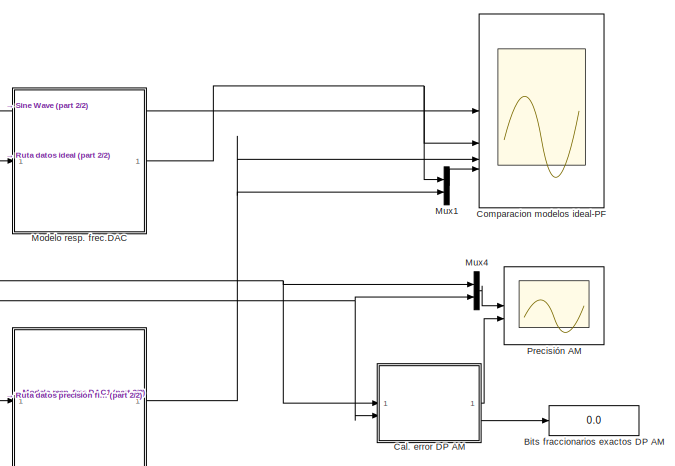
[diagram: root canvas - part 1/2, right side, full height]
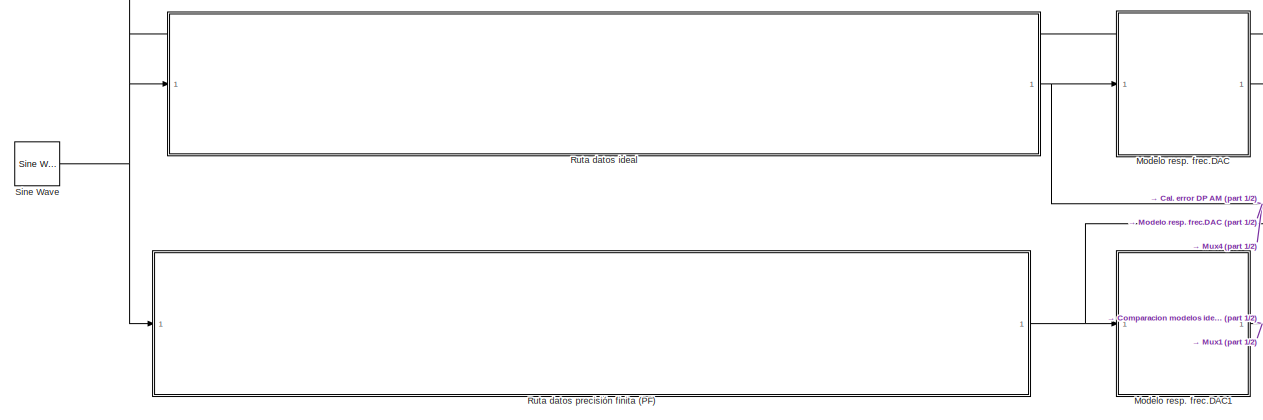
[diagram: root canvas - part 2/2, center side, full height]
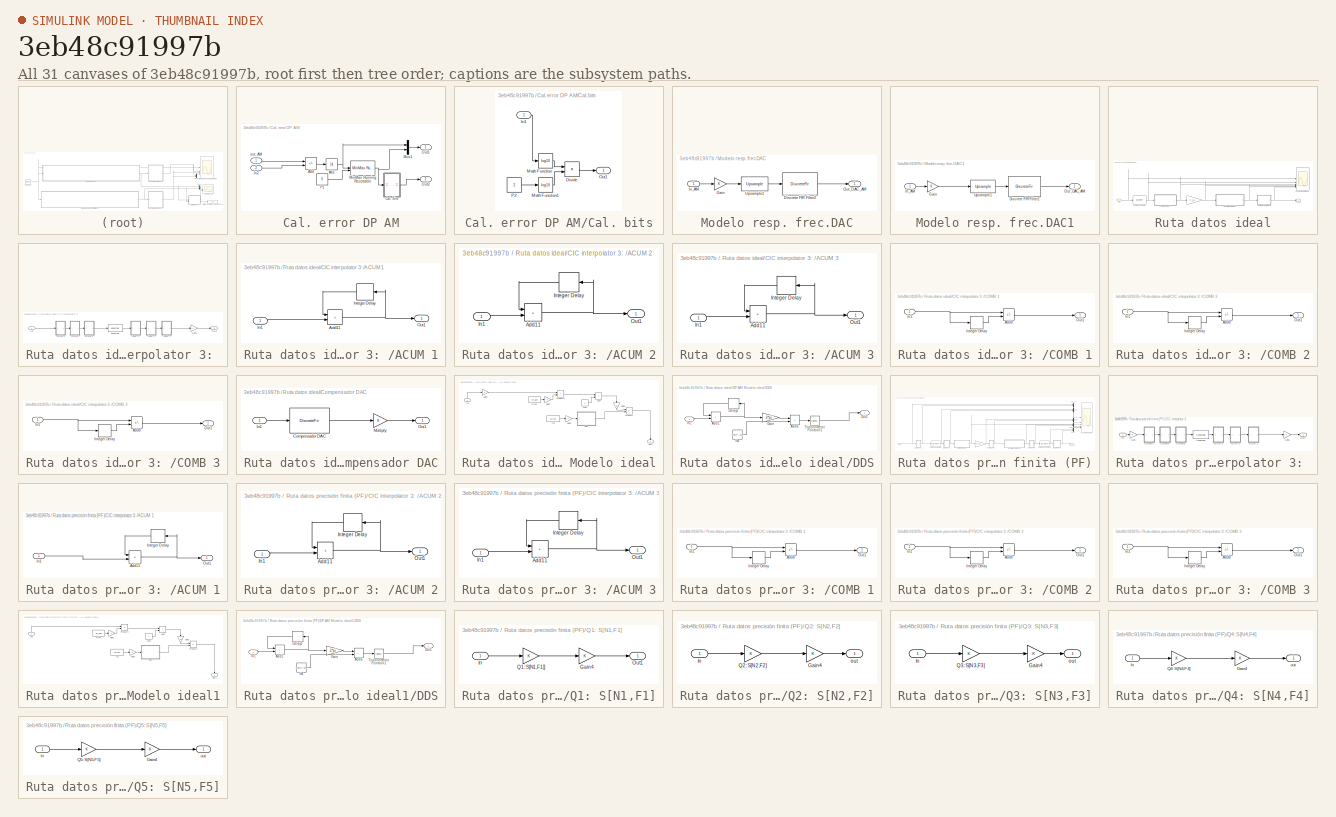
[diagram: thumbnail index - all 31 canvases of the model, root first then tree order]
MODEL slx_3eb48c91997b
KIND model
CONFIG AbsTol = auto
CONFIG EnableMultiTasking = on
CONFIG FixedStep = auto
CONFIG MaxStep = auto
CONFIG MinStep = auto
CONFIG RelTol = 1e-3
CONFIG SampleTimeConstraint = Unconstrained
CONFIG SolverName = VariableStepDiscrete
CONFIG StartTime = 0.0
CONFIG StopTime = sim_time
BLOCK [Display] Bits fraccionarios exactos DP AM
  Decimation = 1
BLOCK [SubSystem] Cal. error DP AM
BLOCK [Abs] Cal. error DP AM/Abs
  SaturateOnIntegerOverflow = off
BLOCK [Sum] Cal. error DP AM/Add
  IconShape = rectangular
  Inputs = +-
BLOCK [SubSystem] Cal. error DP AM/Cal. bits
BLOCK [Product] Cal. error DP AM/Cal. bits/Divide
  Inputs = */
BLOCK [Inport] Cal. error DP AM/Cal. bits/In1
BLOCK [Math] Cal. error DP AM/Cal. bits/Math Function
  Operator = log10
  SignedPower = on
BLOCK [Math] Cal. error DP AM/Cal. bits/Math Function1
  Operator = log10
  SignedPower = on
BLOCK [Outport] Cal. error DP AM/Cal. bits/Out1
  VectorParamsAs1DForOutWhenUnconnected = off
BLOCK [Constant] Cal. error DP AM/Cal. bits/P2
  OutDataTypeStr = double
  SampleTime = -1
  Value = 2
BLOCK [Inport] Cal. error DP AM/In2
  Port = 2
BLOCK [Reference] Cal. error DP AM/MinMax Running Resettable  REF=simulink/Math
Operations/MinMax
Running
Resettable
  SourceBlock = simulink/Math\nOperations/MinMax\nRunning\nResettable
  SourceType = MinMax Running Resettable
BLOCK [Mux] Cal. error DP AM/Mux1
  DisplayOption = bar
  Inputs = 2
BLOCK [Outport] Cal. error DP AM/Out1
  VectorParamsAs1DForOutWhenUnconnected = off
BLOCK [Outport] Cal. error DP AM/Out2
  Port = 2
  VectorParamsAs1DForOutWhenUnconnected = off
BLOCK [Constant] Cal. error DP AM/P1
  OutDataTypeStr = double
  SampleTime = -1
  Value = 0
BLOCK [Inport] Cal. error DP AM/out_AM
BLOCK [Scope] Comparacion modelos ideal-PF
  Floating = off
  NumInputPorts = 4
  ScopeSpecificationString = Simulink.scopes.TimeScopeBlockCfg('CurrentConfiguration', extmgr.ConfigurationSet(extmgr.Configuration('Core','General UI',true),extmgr.Configuration('Core','Source UI',true),extmgr.Configuration('Sources','WiredSimulink',true,'DataLoggingVariableName','ScopeData2','DataLoggingSaveFormat','Array','DataLoggingDecimation','1','DataLoggingDecimateData',true),extmgr.Configuration('Visuals','Time Domai...<+3724ch>
BLOCK [SubSystem] Modelo resp. frec.DAC
BLOCK [DiscreteFir] Modelo resp. frec.DAC/Discrete FIR Filter2
  Coefficients = [1 1 1 1]
  InputPortMap = u0
  InputProcessing = Columns as channels (frame based)
  OutputPortMap = o0
BLOCK [Gain] Modelo resp. frec.DAC/Gain
  OutDataTypeStr = double
BLOCK [Inport] Modelo resp. frec.DAC/In_AM
BLOCK [Outport] Modelo resp. frec.DAC/Out_DAC_AM
  VectorParamsAs1DForOutWhenUnconnected = off
BLOCK [Reference] Modelo resp. frec.DAC/Upsample1  REF=dspsigops/Upsample
  SourceBlock = dspsigops/Upsample
  SourceType = Upsample
  UserDataPersistent = on
BLOCK [SubSystem] Modelo resp. frec.DAC1
BLOCK [DiscreteFir] Modelo resp. frec.DAC1/Discrete FIR Filter2
  Coefficients = [1 1 1 1]
  InputPortMap = u0
  InputProcessing = Columns as channels (frame based)
  OutputPortMap = o0
BLOCK [Gain] Modelo resp. frec.DAC1/Gain
  OutDataTypeStr = double
BLOCK [Inport] Modelo resp. frec.DAC1/In_AM
BLOCK [Outport] Modelo resp. frec.DAC1/Out_DAC_AM
  VectorParamsAs1DForOutWhenUnconnected = off
BLOCK [Reference] Modelo resp. frec.DAC1/Upsample1  REF=dspsigops/Upsample
  SourceBlock = dspsigops/Upsample
  SourceType = Upsample
  UserDataPersistent = on
BLOCK [Mux] Mux1
  DisplayOption = bar
  Inputs = 2
BLOCK [Mux] Mux4
  DisplayOption = bar
  Inputs = 2
BLOCK [Scope] Precisión AM
  Floating = off
  NumInputPorts = 2
  ScopeSpecificationString = Simulink.scopes.TimeScopeBlockCfg('CurrentConfiguration', extmgr.ConfigurationSet(extmgr.Configuration('Core','General UI',true),extmgr.Configuration('Core','Source UI',true),extmgr.Configuration('Sources','WiredSimulink',true,'DataLoggingVariableName','ScopeData1'),extmgr.Configuration('Visuals','Time Domain',true,'SerializedDisplays',{struct('MinYLimReal','-1.04922','MaxYLimReal','1.04923','YLab...<+2123ch>
BLOCK [SubSystem] Ruta datos ideal
BLOCK [Gain] Ruta datos ideal/ 
  Gain = 2^-f_cic_scale
  OutDataTypeStr = double
BLOCK [SubSystem] Ruta datos ideal/CIC interpolator 3: 
BLOCK [SubSystem] Ruta datos ideal/CIC interpolator 3: /ACUM 1
BLOCK [Delay] Ruta datos ideal/CIC interpolator 3: /ACUM 1/   Integer Delay 
  DelayLength = 1
  InputPortMap = u0
  UserDataPersistent = on
BLOCK [Sum] Ruta datos ideal/CIC interpolator 3: /ACUM 1/Add11
  IconShape = rectangular
BLOCK [Inport] Ruta datos ideal/CIC interpolator 3: /ACUM 1/In1
BLOCK [Outport] Ruta datos ideal/CIC interpolator 3: /ACUM 1/Out1
  VectorParamsAs1DForOutWhenUnconnected = off
BLOCK [SubSystem] Ruta datos ideal/CIC interpolator 3: /ACUM 2
BLOCK [Delay] Ruta datos ideal/CIC interpolator 3: /ACUM 2/   Integer Delay 
  DelayLength = 1
  InputPortMap = u0
  UserDataPersistent = on
BLOCK [Sum] Ruta datos ideal/CIC interpolator 3: /ACUM 2/Add11
  IconShape = rectangular
BLOCK [Inport] Ruta datos ideal/CIC interpolator 3: /ACUM 2/In1
BLOCK [Outport] Ruta datos ideal/CIC interpolator 3: /ACUM 2/Out1
  VectorParamsAs1DForOutWhenUnconnected = off
BLOCK [SubSystem] Ruta datos ideal/CIC interpolator 3: /ACUM 3
BLOCK [Delay] Ruta datos ideal/CIC interpolator 3: /ACUM 3/   Integer Delay 
  DelayLength = 1
  InputPortMap = u0
  UserDataPersistent = on
BLOCK [Sum] Ruta datos ideal/CIC interpolator 3: /ACUM 3/Add11
  IconShape = rectangular
BLOCK [Inport] Ruta datos ideal/CIC interpolator 3: /ACUM 3/In1
BLOCK [Outport] Ruta datos ideal/CIC interpolator 3: /ACUM 3/Out1
  VectorParamsAs1DForOutWhenUnconnected = off
BLOCK [SubSystem] Ruta datos ideal/CIC interpolator 3: /COMB 1
BLOCK [Sum] Ruta datos ideal/CIC interpolator 3: /COMB 1/Add8
  IconShape = rectangular
  Inputs = +-
BLOCK [Inport] Ruta datos ideal/CIC interpolator 3: /COMB 1/In1
BLOCK [Delay] Ruta datos ideal/CIC interpolator 3: /COMB 1/Integer Delay 
  DelayLength = 1
  InputPortMap = u0
  UserDataPersistent = on
BLOCK [Outport] Ruta datos ideal/CIC interpolator 3: /COMB 1/Out1
  VectorParamsAs1DForOutWhenUnconnected = off
BLOCK [SubSystem] Ruta datos ideal/CIC interpolator 3: /COMB 2
BLOCK [Sum] Ruta datos ideal/CIC interpolator 3: /COMB 2/Add8
  IconShape = rectangular
  Inputs = +-
BLOCK [Inport] Ruta datos ideal/CIC interpolator 3: /COMB 2/In1
BLOCK [Delay] Ruta datos ideal/CIC interpolator 3: /COMB 2/Integer Delay 
  DelayLength = 1
  InputPortMap = u0
  UserDataPersistent = on
BLOCK [Outport] Ruta datos ideal/CIC interpolator 3: /COMB 2/Out1
  VectorParamsAs1DForOutWhenUnconnected = off
BLOCK [SubSystem] Ruta datos ideal/CIC interpolator 3: /COMB 3
BLOCK [Sum] Ruta datos ideal/CIC interpolator 3: /COMB 3/Add8
  IconShape = rectangular
  Inputs = +-
BLOCK [Inport] Ruta datos ideal/CIC interpolator 3: /COMB 3/In1
BLOCK [Delay] Ruta datos ideal/CIC interpolator 3: /COMB 3/Integer Delay 
  DelayLength = 1
  InputPortMap = u0
  UserDataPersistent = on
BLOCK [Outport] Ruta datos ideal/CIC interpolator 3: /COMB 3/Out1
  VectorParamsAs1DForOutWhenUnconnected = off
BLOCK [Gain] Ruta datos ideal/CIC interpolator 3: /Gain1
  OutDataTypeStr = double
BLOCK [Inport] Ruta datos ideal/CIC interpolator 3: /In1
BLOCK [Outport] Ruta datos ideal/CIC interpolator 3: /Out1
  VectorParamsAs1DForOutWhenUnconnected = off
BLOCK [Reference] Ruta datos ideal/CIC interpolator 3: /Upsample  REF=dspsigops/Upsample
  SourceBlock = dspsigops/Upsample
  SourceType = Upsample
  UserDataPersistent = on
BLOCK [DiscreteFir] Ruta datos ideal/Compensador CIC
  Coefficients = h_comp_cic
  InputPortMap = u0
  InputProcessing = Columns as channels (frame based)
  OutputPortMap = o0
BLOCK [SubSystem] Ruta datos ideal/Compensador DAC
BLOCK [DiscreteFir] Ruta datos ideal/Compensador DAC/Compensador DAC
  Coefficients = h_comp_DAC
  InputPortMap = u0
  InputProcessing = Columns as channels (frame based)
  OutputPortMap = o0
BLOCK [Inport] Ruta datos ideal/Compensador DAC/In1
BLOCK [Gain] Ruta datos ideal/Compensador DAC/Multiply
  OutDataTypeStr = double
BLOCK [Outport] Ruta datos ideal/Compensador DAC/Out1
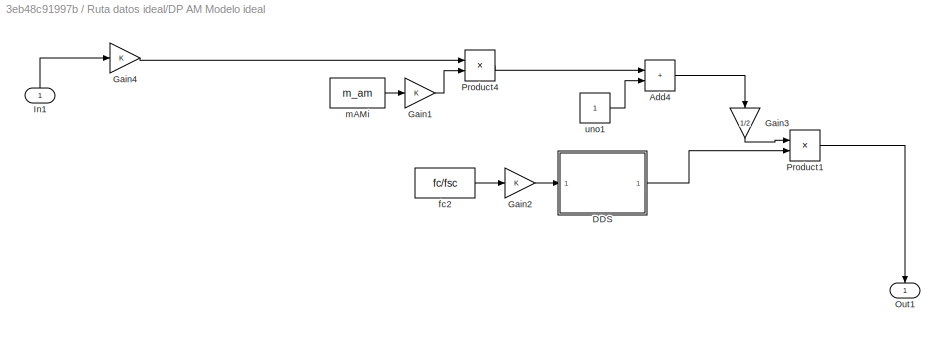
BLOCK [SubSystem] Ruta datos ideal/DP AM Modelo ideal
BLOCK [Sum] Ruta datos ideal/DP AM Modelo ideal/Add4
  IconShape = rectangular
BLOCK [SubSystem] Ruta datos ideal/DP AM Modelo ideal/DDS
BLOCK [Sum] Ruta datos ideal/DP AM Modelo ideal/DDS/Add1
  IconShape = rectangular
BLOCK [Sum] Ruta datos ideal/DP AM Modelo ideal/DDS/Add6
  IconShape = rectangular
BLOCK [Delay] Ruta datos ideal/DP AM Modelo ideal/DDS/Delay1
  DelayLength = 1
  InputPortMap = u0
BLOCK [Gain] Ruta datos ideal/DP AM Modelo ideal/DDS/Gain
  Gain = 2*pi
BLOCK [Inport] Ruta datos ideal/DP AM Modelo ideal/DDS/In1
BLOCK [Outport] Ruta datos ideal/DP AM Modelo ideal/DDS/Out1
  VectorParamsAs1DForOutWhenUnconnected = off
BLOCK [Trigonometry] Ruta datos ideal/DP AM Modelo ideal/DDS/Trigonometric Function1
BLOCK [Constant] Ruta datos ideal/DP AM Modelo ideal/DDS/fc4
  Value = 2*pi*2^-(15+1)
BLOCK [Gain] Ruta datos ideal/DP AM Modelo ideal/Gain1
  OutDataTypeStr = double
BLOCK [Gain] Ruta datos ideal/DP AM Modelo ideal/Gain2
  OutDataTypeStr = double
BLOCK [Gain] Ruta datos ideal/DP AM Modelo ideal/Gain3
  Gain = 1/2
  NameLocation = left
  OutDataTypeStr = double
BLOCK [Gain] Ruta datos ideal/DP AM Modelo ideal/Gain4
  OutDataTypeStr = double
BLOCK [Inport] Ruta datos ideal/DP AM Modelo ideal/In1
  NameLocation = right
BLOCK [Outport] Ruta datos ideal/DP AM Modelo ideal/Out1
  NameLocation = right
  VectorParamsAs1DForOutWhenUnconnected = off
BLOCK [Product] Ruta datos ideal/DP AM Modelo ideal/Product1
BLOCK [Product] Ruta datos ideal/DP AM Modelo ideal/Product4
BLOCK [Constant] Ruta datos ideal/DP AM Modelo ideal/fc2
  OutDataTypeStr = fixdt(0,24,24)
  Value = fc/fsc
BLOCK [Constant] Ruta datos ideal/DP AM Modelo ideal/mAMi 
  OutDataTypeStr = fixdt(0,16,15)
  Value = m_am
BLOCK [Constant] Ruta datos ideal/DP AM Modelo ideal/uno1
BLOCK [Inport] Ruta datos ideal/In
BLOCK [Scope] Ruta datos ideal/Scope Modelo ideal
  Floating = off
  NumInputPorts = 6
  ScopeSpecificationString = Simulink.scopes.TimeScopeBlockCfg('CurrentConfiguration', extmgr.ConfigurationSet(extmgr.Configuration('Core','General UI',true),extmgr.Configuration('Core','Source UI',true),extmgr.Configuration('Sources','WiredSimulink',true,'DataLoggingSaveFormat','Array','DataLoggingDecimation','1','DataLoggingDecimateData',true),extmgr.Configuration('Visuals','Time Domain',true,'SerializedDisplays',{struct('M...<+6886ch>
BLOCK [Outport] Ruta datos ideal/out_AM
  VectorParamsAs1DForOutWhenUnconnected = off
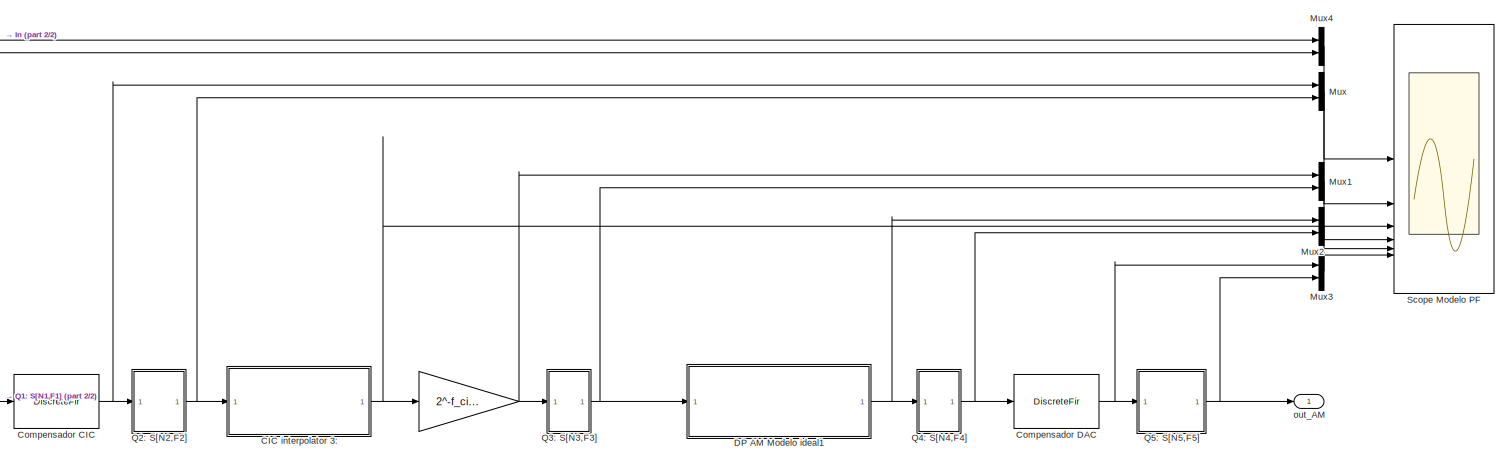
[diagram: Ruta datos precisión finita (PF) - part 1/2, most of the canvas]
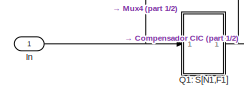
[diagram: Ruta datos precisión finita (PF) - part 2/2, bottom left region]
BLOCK [SubSystem] Ruta datos precisión finita (PF)
BLOCK [Gain] Ruta datos precisión finita (PF)/ 
  Gain = 2^-f_cic_scale
  OutDataTypeStr = double
BLOCK [SubSystem] Ruta datos precisión finita (PF)/CIC interpolator 3: 
BLOCK [SubSystem] Ruta datos precisión finita (PF)/CIC interpolator 3: /ACUM 1
BLOCK [Delay] Ruta datos precisión finita (PF)/CIC interpolator 3: /ACUM 1/   Integer Delay 
  DelayLength = 1
  InputPortMap = u0
  UserDataPersistent = on
BLOCK [Sum] Ruta datos precisión finita (PF)/CIC interpolator 3: /ACUM 1/Add11
  IconShape = rectangular
BLOCK [Inport] Ruta datos precisión finita (PF)/CIC interpolator 3: /ACUM 1/In1
BLOCK [Outport] Ruta datos precisión finita (PF)/CIC interpolator 3: /ACUM 1/Out1
  VectorParamsAs1DForOutWhenUnconnected = off
BLOCK [SubSystem] Ruta datos precisión finita (PF)/CIC interpolator 3: /ACUM 2
BLOCK [Delay] Ruta datos precisión finita (PF)/CIC interpolator 3: /ACUM 2/   Integer Delay 
  DelayLength = 1
  InputPortMap = u0
  UserDataPersistent = on
BLOCK [Sum] Ruta datos precisión finita (PF)/CIC interpolator 3: /ACUM 2/Add11
  IconShape = rectangular
BLOCK [Inport] Ruta datos precisión finita (PF)/CIC interpolator 3: /ACUM 2/In1
BLOCK [Outport] Ruta datos precisión finita (PF)/CIC interpolator 3: /ACUM 2/Out1
  VectorParamsAs1DForOutWhenUnconnected = off
BLOCK [SubSystem] Ruta datos precisión finita (PF)/CIC interpolator 3: /ACUM 3
BLOCK [Delay] Ruta datos precisión finita (PF)/CIC interpolator 3: /ACUM 3/   Integer Delay 
  DelayLength = 1
  InputPortMap = u0
  UserDataPersistent = on
BLOCK [Sum] Ruta datos precisión finita (PF)/CIC interpolator 3: /ACUM 3/Add11
  IconShape = rectangular
BLOCK [Inport] Ruta datos precisión finita (PF)/CIC interpolator 3: /ACUM 3/In1
BLOCK [Outport] Ruta datos precisión finita (PF)/CIC interpolator 3: /ACUM 3/Out1
  VectorParamsAs1DForOutWhenUnconnected = off
BLOCK [SubSystem] Ruta datos precisión finita (PF)/CIC interpolator 3: /COMB 1
BLOCK [Sum] Ruta datos precisión finita (PF)/CIC interpolator 3: /COMB 1/Add8
  IconShape = rectangular
  Inputs = +-
BLOCK [Inport] Ruta datos precisión finita (PF)/CIC interpolator 3: /COMB 1/In1
BLOCK [Delay] Ruta datos precisión finita (PF)/CIC interpolator 3: /COMB 1/Integer Delay 
  DelayLength = 1
  InputPortMap = u0
  UserDataPersistent = on
BLOCK [Outport] Ruta datos precisión finita (PF)/CIC interpolator 3: /COMB 1/Out1
  VectorParamsAs1DForOutWhenUnconnected = off
BLOCK [SubSystem] Ruta datos precisión finita (PF)/CIC interpolator 3: /COMB 2
BLOCK [Sum] Ruta datos precisión finita (PF)/CIC interpolator 3: /COMB 2/Add8
  IconShape = rectangular
  Inputs = +-
BLOCK [Inport] Ruta datos precisión finita (PF)/CIC interpolator 3: /COMB 2/In1
BLOCK [Delay] Ruta datos precisión finita (PF)/CIC interpolator 3: /COMB 2/Integer Delay 
  DelayLength = 1
  InputPortMap = u0
  UserDataPersistent = on
BLOCK [Outport] Ruta datos precisión finita (PF)/CIC interpolator 3: /COMB 2/Out1
  VectorParamsAs1DForOutWhenUnconnected = off
BLOCK [SubSystem] Ruta datos precisión finita (PF)/CIC interpolator 3: /COMB 3
BLOCK [Sum] Ruta datos precisión finita (PF)/CIC interpolator 3: /COMB 3/Add8
  IconShape = rectangular
  Inputs = +-
BLOCK [Inport] Ruta datos precisión finita (PF)/CIC interpolator 3: /COMB 3/In1
BLOCK [Delay] Ruta datos precisión finita (PF)/CIC interpolator 3: /COMB 3/Integer Delay 
  DelayLength = 1
  InputPortMap = u0
  UserDataPersistent = on
BLOCK [Outport] Ruta datos precisión finita (PF)/CIC interpolator 3: /COMB 3/Out1
  VectorParamsAs1DForOutWhenUnconnected = off
BLOCK [Gain] Ruta datos precisión finita (PF)/CIC interpolator 3: /Gain
  OutDataTypeStr = double
BLOCK [Gain] Ruta datos precisión finita (PF)/CIC interpolator 3: /Gain1
  OutDataTypeStr = double
BLOCK [Inport] Ruta datos precisión finita (PF)/CIC interpolator 3: /In1
BLOCK [Outport] Ruta datos precisión finita (PF)/CIC interpolator 3: /Out1
  VectorParamsAs1DForOutWhenUnconnected = off
BLOCK [Reference] Ruta datos precisión finita (PF)/CIC interpolator 3: /Upsample  REF=dspsigops/Upsample
  SourceBlock = dspsigops/Upsample
  SourceType = Upsample
  UserDataPersistent = on
BLOCK [DiscreteFir] Ruta datos precisión finita (PF)/Compensador CIC
  Coefficients = h_comp_cic
  InputPortMap = u0
  InputProcessing = Columns as channels (frame based)
  OutputPortMap = o0
BLOCK [DiscreteFir] Ruta datos precisión finita (PF)/Compensador DAC
  Coefficients = h_comp_DAC
  InputPortMap = u0
  InputProcessing = Columns as channels (frame based)
  OutputPortMap = o0
BLOCK [SubSystem] Ruta datos precisión finita (PF)/DP AM Modelo ideal1
BLOCK [Sum] Ruta datos precisión finita (PF)/DP AM Modelo ideal1/Add4
  IconShape = rectangular
BLOCK [SubSystem] Ruta datos precisión finita (PF)/DP AM Modelo ideal1/DDS
BLOCK [Sum] Ruta datos precisión finita (PF)/DP AM Modelo ideal1/DDS/Add1
  IconShape = rectangular
BLOCK [Sum] Ruta datos precisión finita (PF)/DP AM Modelo ideal1/DDS/Add6
  IconShape = rectangular
BLOCK [Delay] Ruta datos precisión finita (PF)/DP AM Modelo ideal1/DDS/Delay1
  DelayLength = 1
  InputPortMap = u0
BLOCK [Gain] Ruta datos precisión finita (PF)/DP AM Modelo ideal1/DDS/Gain
  Gain = 2*pi
BLOCK [Inport] Ruta datos precisión finita (PF)/DP AM Modelo ideal1/DDS/In1
BLOCK [Outport] Ruta datos precisión finita (PF)/DP AM Modelo ideal1/DDS/Out1
  VectorParamsAs1DForOutWhenUnconnected = off
BLOCK [Trigonometry] Ruta datos precisión finita (PF)/DP AM Modelo ideal1/DDS/Trigonometric Function1
BLOCK [Constant] Ruta datos precisión finita (PF)/DP AM Modelo ideal1/DDS/fc4
  Value = 2*pi*2^-(15+1)
BLOCK [Gain] Ruta datos precisión finita (PF)/DP AM Modelo ideal1/Gain1
  OutDataTypeStr = double
BLOCK [Gain] Ruta datos precisión finita (PF)/DP AM Modelo ideal1/Gain2
  OutDataTypeStr = double
BLOCK [Gain] Ruta datos precisión finita (PF)/DP AM Modelo ideal1/Gain3
  Gain = 1/2
  NameLocation = left
  OutDataTypeStr = double
BLOCK [Inport] Ruta datos precisión finita (PF)/DP AM Modelo ideal1/In1
  NameLocation = right
BLOCK [Outport] Ruta datos precisión finita (PF)/DP AM Modelo ideal1/Out1
  NameLocation = right
  VectorParamsAs1DForOutWhenUnconnected = off
BLOCK [Product] Ruta datos precisión finita (PF)/DP AM Modelo ideal1/Product1
BLOCK [Product] Ruta datos precisión finita (PF)/DP AM Modelo ideal1/Product4
BLOCK [Constant] Ruta datos precisión finita (PF)/DP AM Modelo ideal1/fc2
  OutDataTypeStr = fixdt(0,24,24)
  Value = fc/fsc
BLOCK [Constant] Ruta datos precisión finita (PF)/DP AM Modelo ideal1/mAMi 
  OutDataTypeStr = fixdt(0,16,15)
  Value = m_am
BLOCK [Constant] Ruta datos precisión finita (PF)/DP AM Modelo ideal1/uno1
BLOCK [Inport] Ruta datos precisión finita (PF)/In
BLOCK [Mux] Ruta datos precisión finita (PF)/Mux
  DisplayOption = bar
  Inputs = 2
BLOCK [Mux] Ruta datos precisión finita (PF)/Mux1
  DisplayOption = bar
  Inputs = 2
BLOCK [Mux] Ruta datos precisión finita (PF)/Mux2
  DisplayOption = bar
  Inputs = 2
BLOCK [Mux] Ruta datos precisión finita (PF)/Mux3
  DisplayOption = bar
  Inputs = 2
BLOCK [Mux] Ruta datos precisión finita (PF)/Mux4
  DisplayOption = bar
  Inputs = 2
BLOCK [SubSystem] Ruta datos precisión finita (PF)/Q1: S[N1,F1]
BLOCK [Gain] Ruta datos precisión finita (PF)/Q1: S[N1,F1]/Gain4
  OutDataTypeStr = double
BLOCK [Inport] Ruta datos precisión finita (PF)/Q1: S[N1,F1]/In
BLOCK [Outport] Ruta datos precisión finita (PF)/Q1: S[N1,F1]/Out1
  VectorParamsAs1DForOutWhenUnconnected = off
BLOCK [Gain] Ruta datos precisión finita (PF)/Q1: S[N1,F1]/Q1: S[N1,F1]]
  OutDataTypeStr = fixdt(1,N1,F1)
BLOCK [SubSystem] Ruta datos precisión finita (PF)/Q2: S[N2,F2]
BLOCK [Gain] Ruta datos precisión finita (PF)/Q2: S[N2,F2]/Gain4
  OutDataTypeStr = double
BLOCK [Inport] Ruta datos precisión finita (PF)/Q2: S[N2,F2]/In
BLOCK [Gain] Ruta datos precisión finita (PF)/Q2: S[N2,F2]/Q2: S[N2,F2]
  OutDataTypeStr = fixdt(1,N2,F2)
BLOCK [Outport] Ruta datos precisión finita (PF)/Q2: S[N2,F2]/out
  VectorParamsAs1DForOutWhenUnconnected = off
BLOCK [SubSystem] Ruta datos precisión finita (PF)/Q3: S[N3,F3]
BLOCK [Gain] Ruta datos precisión finita (PF)/Q3: S[N3,F3]/Gain4
  OutDataTypeStr = double
BLOCK [Inport] Ruta datos precisión finita (PF)/Q3: S[N3,F3]/In
BLOCK [Gain] Ruta datos precisión finita (PF)/Q3: S[N3,F3]/Q3: S[N3,F3]
  OutDataTypeStr = fixdt(1,N3,F3)
BLOCK [Outport] Ruta datos precisión finita (PF)/Q3: S[N3,F3]/out
  VectorParamsAs1DForOutWhenUnconnected = off
BLOCK [SubSystem] Ruta datos precisión finita (PF)/Q4: S[N4,F4]
BLOCK [Gain] Ruta datos precisión finita (PF)/Q4: S[N4,F4]/Gain4
  OutDataTypeStr = double
BLOCK [Inport] Ruta datos precisión finita (PF)/Q4: S[N4,F4]/In
BLOCK [Gain] Ruta datos precisión finita (PF)/Q4: S[N4,F4]/Q4: S[N4,F4]
  OutDataTypeStr = fixdt(1,N4,F4)
BLOCK [Outport] Ruta datos precisión finita (PF)/Q4: S[N4,F4]/out
  VectorParamsAs1DForOutWhenUnconnected = off
BLOCK [SubSystem] Ruta datos precisión finita (PF)/Q5: S[N5,F5]
BLOCK [Gain] Ruta datos precisión finita (PF)/Q5: S[N5,F5]/Gain4
  OutDataTypeStr = double
BLOCK [Inport] Ruta datos precisión finita (PF)/Q5: S[N5,F5]/In
BLOCK [Gain] Ruta datos precisión finita (PF)/Q5: S[N5,F5]/Q5: S[N5,F5]
  OutDataTypeStr = fixdt(1,N5,F5)
BLOCK [Outport] Ruta datos precisión finita (PF)/Q5: S[N5,F5]/out
  VectorParamsAs1DForOutWhenUnconnected = off
BLOCK [Scope] Ruta datos precisión finita (PF)/Scope Modelo PF
  Floating = off
  NumInputPorts = 6
  ScopeSpecificationString = Simulink.scopes.TimeScopeBlockCfg('CurrentConfiguration', extmgr.ConfigurationSet(extmgr.Configuration('Core','General UI',true),extmgr.Configuration('Core','Source UI',true),extmgr.Configuration('Sources','WiredSimulink',true,'DataLoggingSaveFormat','Array','DataLoggingDecimation','1','DataLoggingDecimateData',true,'DataLoggingVariableName','ScopeData1'),extmgr.Configuration('Visuals','Time Domai...<+6993ch>
BLOCK [Outport] Ruta datos precisión finita (PF)/out_AM
  VectorParamsAs1DForOutWhenUnconnected = off
BLOCK [Reference] Sine Wave  REF=dspsrcs4/Sine Wave
  SourceBlock = dspsrcs4/Sine Wave
  SourceType = Sine Wave
NET Cal. error DP AM/Abs:1 -> Cal. error DP AM/MinMax Running Resettable:1, Cal. error DP AM/Mux1:1
LINE Cal. error DP AM/Add:1 -> Cal. error DP AM/Abs:1
LINE Cal. error DP AM/Cal. bits/Divide:1 -> Cal. error DP AM/Cal. bits/Out1:1
LINE Cal. error DP AM/Cal. bits/In1:1 -> Cal. error DP AM/Cal. bits/Math Function:1
LINE Cal. error DP AM/Cal. bits/Math Function1:1 -> Cal. error DP AM/Cal. bits/Divide:2
LINE Cal. error DP AM/Cal. bits/Math Function:1 -> Cal. error DP AM/Cal. bits/Divide:1
LINE Cal. error DP AM/Cal. bits/P2:1 -> Cal. error DP AM/Cal. bits/Math Function1:1
LINE Cal. error DP AM/Cal. bits:1 -> Cal. error DP AM/Out2:1
LINE Cal. error DP AM/In2:1 -> Cal. error DP AM/Add:2
NET Cal. error DP AM/MinMax Running Resettable:1 -> Cal. error DP AM/Cal. bits:1, Cal. error DP AM/Mux1:2
LINE Cal. error DP AM/Mux1:1 -> Cal. error DP AM/Out1:1
LINE Cal. error DP AM/P1:1 -> Cal. error DP AM/MinMax Running Resettable:2
LINE Cal. error DP AM/out_AM:1 -> Cal. error DP AM/Add:1
LINE Cal. error DP AM:1 -> Precisión AM:2
LINE Cal. error DP AM:2 -> Bits fraccionarios exactos DP AM:1
LINE Modelo resp. frec.DAC/Discrete FIR Filter2:1 -> Modelo resp. frec.DAC/Out_DAC_AM:1
LINE Modelo resp. frec.DAC/Gain:1 -> Modelo resp. frec.DAC/Upsample1:1
LINE Modelo resp. frec.DAC/In_AM:1 -> Modelo resp. frec.DAC/Gain:1
LINE Modelo resp. frec.DAC/Upsample1:1 -> Modelo resp. frec.DAC/Discrete FIR Filter2:1
LINE Modelo resp. frec.DAC1/Discrete FIR Filter2:1 -> Modelo resp. frec.DAC1/Out_DAC_AM:1
LINE Modelo resp. frec.DAC1/Gain:1 -> Modelo resp. frec.DAC1/Upsample1:1
LINE Modelo resp. frec.DAC1/In_AM:1 -> Modelo resp. frec.DAC1/Gain:1
LINE Modelo resp. frec.DAC1/Upsample1:1 -> Modelo resp. frec.DAC1/Discrete FIR Filter2:1
NET Modelo resp. frec.DAC1:1 -> Comparacion modelos ideal-PF:3, Mux1:2
NET Modelo resp. frec.DAC:1 -> Comparacion modelos ideal-PF:2, Mux1:1
LINE Mux1:1 -> Comparacion modelos ideal-PF:4
LINE Mux4:1 -> Precisión AM:1
NET Ruta datos ideal/ :1 -> Ruta datos ideal/DP AM Modelo ideal:1, Ruta datos ideal/Scope Modelo ideal:4
LINE Ruta datos ideal/CIC interpolator 3: /ACUM 1/   Integer Delay :1 -> Ruta datos ideal/CIC interpolator 3: /ACUM 1/Add11:1
NET Ruta datos ideal/CIC interpolator 3: /ACUM 1/Add11:1 -> Ruta datos ideal/CIC interpolator 3: /ACUM 1/   Integer Delay :1, Ruta datos ideal/CIC interpolator 3: /ACUM 1/Out1:1
LINE Ruta datos ideal/CIC interpolator 3: /ACUM 1/In1:1 -> Ruta datos ideal/CIC interpolator 3: /ACUM 1/Add11:2
LINE Ruta datos ideal/CIC interpolator 3: /ACUM 1:1 -> Ruta datos ideal/CIC interpolator 3: /Gain1:1
LINE Ruta datos ideal/CIC interpolator 3: /ACUM 2/   Integer Delay :1 -> Ruta datos ideal/CIC interpolator 3: /ACUM 2/Add11:1
NET Ruta datos ideal/CIC interpolator 3: /ACUM 2/Add11:1 -> Ruta datos ideal/CIC interpolator 3: /ACUM 2/   Integer Delay :1, Ruta datos ideal/CIC interpolator 3: /ACUM 2/Out1:1
LINE Ruta datos ideal/CIC interpolator 3: /ACUM 2/In1:1 -> Ruta datos ideal/CIC interpolator 3: /ACUM 2/Add11:2
LINE Ruta datos ideal/CIC interpolator 3: /ACUM 2:1 -> Ruta datos ideal/CIC interpolator 3: /ACUM 1:1
LINE Ruta datos ideal/CIC interpolator 3: /ACUM 3/   Integer Delay :1 -> Ruta datos ideal/CIC interpolator 3: /ACUM 3/Add11:1
NET Ruta datos ideal/CIC interpolator 3: /ACUM 3/Add11:1 -> Ruta datos ideal/CIC interpolator 3: /ACUM 3/   Integer Delay :1, Ruta datos ideal/CIC interpolator 3: /ACUM 3/Out1:1
LINE Ruta datos ideal/CIC interpolator 3: /ACUM 3/In1:1 -> Ruta datos ideal/CIC interpolator 3: /ACUM 3/Add11:2
LINE Ruta datos ideal/CIC interpolator 3: /ACUM 3:1 -> Ruta datos ideal/CIC interpolator 3: /ACUM 2:1
LINE Ruta datos ideal/CIC interpolator 3: /COMB 1/Add8:1 -> Ruta datos ideal/CIC interpolator 3: /COMB 1/Out1:1
NET Ruta datos ideal/CIC interpolator 3: /COMB 1/In1:1 -> Ruta datos ideal/CIC interpolator 3: /COMB 1/Add8:1, Ruta datos ideal/CIC interpolator 3: /COMB 1/Integer Delay :1
LINE Ruta datos ideal/CIC interpolator 3: /COMB 1/Integer Delay :1 -> Ruta datos ideal/CIC interpolator 3: /COMB 1/Add8:2
LINE Ruta datos ideal/CIC interpolator 3: /COMB 1:1 -> Ruta datos ideal/CIC interpolator 3: /COMB 2:1
LINE Ruta datos ideal/CIC interpolator 3: /COMB 2/Add8:1 -> Ruta datos ideal/CIC interpolator 3: /COMB 2/Out1:1
NET Ruta datos ideal/CIC interpolator 3: /COMB 2/In1:1 -> Ruta datos ideal/CIC interpolator 3: /COMB 2/Add8:1, Ruta datos ideal/CIC interpolator 3: /COMB 2/Integer Delay :1
LINE Ruta datos ideal/CIC interpolator 3: /COMB 2/Integer Delay :1 -> Ruta datos ideal/CIC interpolator 3: /COMB 2/Add8:2
LINE Ruta datos ideal/CIC interpolator 3: /COMB 2:1 -> Ruta datos ideal/CIC interpolator 3: /COMB 3:1
LINE Ruta datos ideal/CIC interpolator 3: /COMB 3/Add8:1 -> Ruta datos ideal/CIC interpolator 3: /COMB 3/Out1:1
NET Ruta datos ideal/CIC interpolator 3: /COMB 3/In1:1 -> Ruta datos ideal/CIC interpolator 3: /COMB 3/Add8:1, Ruta datos ideal/CIC interpolator 3: /COMB 3/Integer Delay :1
LINE Ruta datos ideal/CIC interpolator 3: /COMB 3/Integer Delay :1 -> Ruta datos ideal/CIC interpolator 3: /COMB 3/Add8:2
LINE Ruta datos ideal/CIC interpolator 3: /COMB 3:1 -> Ruta datos ideal/CIC interpolator 3: /Upsample:1
LINE Ruta datos ideal/CIC interpolator 3: /Gain1:1 -> Ruta datos ideal/CIC interpolator 3: /Out1:1
LINE Ruta datos ideal/CIC interpolator 3: /In1:1 -> Ruta datos ideal/CIC interpolator 3: /COMB 1:1
LINE Ruta datos ideal/CIC interpolator 3: /Upsample:1 -> Ruta datos ideal/CIC interpolator 3: /ACUM 3:1
NET Ruta datos ideal/CIC interpolator 3: :1 -> Ruta datos ideal/ :1, Ruta datos ideal/Scope Modelo ideal:3
NET Ruta datos ideal/Compensador CIC:1 -> Ruta datos ideal/CIC interpolator 3: :1, Ruta datos ideal/Scope Modelo ideal:2
LINE Ruta datos ideal/Compensador DAC/Compensador DAC:1 -> Ruta datos ideal/Compensador DAC/Multiply:1
LINE Ruta datos ideal/Compensador DAC/In1:1 -> Ruta datos ideal/Compensador DAC/Compensador DAC:1
LINE Ruta datos ideal/Compensador DAC/Multiply:1 -> Ruta datos ideal/Compensador DAC/Out1:1
NET Ruta datos ideal/Compensador DAC:1 -> Ruta datos ideal/Scope Modelo ideal:6, Ruta datos ideal/out_AM:1
LINE Ruta datos ideal/DP AM Modelo ideal/Add4:1 -> Ruta datos ideal/DP AM Modelo ideal/Gain3:1
NET Ruta datos ideal/DP AM Modelo ideal/DDS/Add1:1 -> Ruta datos ideal/DP AM Modelo ideal/DDS/Delay1:1, Ruta datos ideal/DP AM Modelo ideal/DDS/Gain:1
LINE Ruta datos ideal/DP AM Modelo ideal/DDS/Add6:1 -> Ruta datos ideal/DP AM Modelo ideal/DDS/Trigonometric Function1:1
LINE Ruta datos ideal/DP AM Modelo ideal/DDS/Delay1:1 -> Ruta datos ideal/DP AM Modelo ideal/DDS/Add1:1
LINE Ruta datos ideal/DP AM Modelo ideal/DDS/Gain:1 -> Ruta datos ideal/DP AM Modelo ideal/DDS/Add6:1
LINE Ruta datos ideal/DP AM Modelo ideal/DDS/In1:1 -> Ruta datos ideal/DP AM Modelo ideal/DDS/Add1:2
LINE Ruta datos ideal/DP AM Modelo ideal/DDS/Trigonometric Function1:1 -> Ruta datos ideal/DP AM Modelo ideal/DDS/Out1:1
LINE Ruta datos ideal/DP AM Modelo ideal/DDS/fc4:1 -> Ruta datos ideal/DP AM Modelo ideal/DDS/Add6:2
LINE Ruta datos ideal/DP AM Modelo ideal/DDS:1 -> Ruta datos ideal/DP AM Modelo ideal/Product1:2
LINE Ruta datos ideal/DP AM Modelo ideal/Gain1:1 -> Ruta datos ideal/DP AM Modelo ideal/Product4:2
LINE Ruta datos ideal/DP AM Modelo ideal/Gain2:1 -> Ruta datos ideal/DP AM Modelo ideal/DDS:1
LINE Ruta datos ideal/DP AM Modelo ideal/Gain3:1 -> Ruta datos ideal/DP AM Modelo ideal/Product1:1
LINE Ruta datos ideal/DP AM Modelo ideal/Gain4:1 -> Ruta datos ideal/DP AM Modelo ideal/Product4:1
LINE Ruta datos ideal/DP AM Modelo ideal/In1:1 -> Ruta datos ideal/DP AM Modelo ideal/Gain4:1
LINE Ruta datos ideal/DP AM Modelo ideal/Product1:1 -> Ruta datos ideal/DP AM Modelo ideal/Out1:1
LINE Ruta datos ideal/DP AM Modelo ideal/Product4:1 -> Ruta datos ideal/DP AM Modelo ideal/Add4:1
LINE Ruta datos ideal/DP AM Modelo ideal/fc2:1 -> Ruta datos ideal/DP AM Modelo ideal/Gain2:1
LINE Ruta datos ideal/DP AM Modelo ideal/mAMi :1 -> Ruta datos ideal/DP AM Modelo ideal/Gain1:1
LINE Ruta datos ideal/DP AM Modelo ideal/uno1:1 -> Ruta datos ideal/DP AM Modelo ideal/Add4:2
NET Ruta datos ideal/DP AM Modelo ideal:1 -> Ruta datos ideal/Compensador DAC:1, Ruta datos ideal/Scope Modelo ideal:5
NET Ruta datos ideal/In:1 -> Ruta datos ideal/Compensador CIC:1, Ruta datos ideal/Scope Modelo ideal:1
NET Ruta datos ideal:1 -> Cal. error DP AM:1, Modelo resp. frec.DAC:1, Mux4:1
NET Ruta datos precisión finita (PF)/ :1 -> Ruta datos precisión finita (PF)/Mux1:1, Ruta datos precisión finita (PF)/Q3: S[N3,F3]:1
LINE Ruta datos precisión finita (PF)/CIC interpolator 3: /ACUM 1/   Integer Delay :1 -> Ruta datos precisión finita (PF)/CIC interpolator 3: /ACUM 1/Add11:1
NET Ruta datos precisión finita (PF)/CIC interpolator 3: /ACUM 1/Add11:1 -> Ruta datos precisión finita (PF)/CIC interpolator 3: /ACUM 1/   Integer Delay :1, Ruta datos precisión finita (PF)/CIC interpolator 3: /ACUM 1/Out1:1
LINE Ruta datos precisión finita (PF)/CIC interpolator 3: /ACUM 1/In1:1 -> Ruta datos precisión finita (PF)/CIC interpolator 3: /ACUM 1/Add11:2
LINE Ruta datos precisión finita (PF)/CIC interpolator 3: /ACUM 1:1 -> Ruta datos precisión finita (PF)/CIC interpolator 3: /Gain1:1
LINE Ruta datos precisión finita (PF)/CIC interpolator 3: /ACUM 2/   Integer Delay :1 -> Ruta datos precisión finita (PF)/CIC interpolator 3: /ACUM 2/Add11:1
NET Ruta datos precisión finita (PF)/CIC interpolator 3: /ACUM 2/Add11:1 -> Ruta datos precisión finita (PF)/CIC interpolator 3: /ACUM 2/   Integer Delay :1, Ruta datos precisión finita (PF)/CIC interpolator 3: /ACUM 2/Out1:1
LINE Ruta datos precisión finita (PF)/CIC interpolator 3: /ACUM 2/In1:1 -> Ruta datos precisión finita (PF)/CIC interpolator 3: /ACUM 2/Add11:2
LINE Ruta datos precisión finita (PF)/CIC interpolator 3: /ACUM 2:1 -> Ruta datos precisión finita (PF)/CIC interpolator 3: /ACUM 1:1
LINE Ruta datos precisión finita (PF)/CIC interpolator 3: /ACUM 3/   Integer Delay :1 -> Ruta datos precisión finita (PF)/CIC interpolator 3: /ACUM 3/Add11:1
NET Ruta datos precisión finita (PF)/CIC interpolator 3: /ACUM 3/Add11:1 -> Ruta datos precisión finita (PF)/CIC interpolator 3: /ACUM 3/   Integer Delay :1, Ruta datos precisión finita (PF)/CIC interpolator 3: /ACUM 3/Out1:1
LINE Ruta datos precisión finita (PF)/CIC interpolator 3: /ACUM 3/In1:1 -> Ruta datos precisión finita (PF)/CIC interpolator 3: /ACUM 3/Add11:2
LINE Ruta datos precisión finita (PF)/CIC interpolator 3: /ACUM 3:1 -> Ruta datos precisión finita (PF)/CIC interpolator 3: /ACUM 2:1
LINE Ruta datos precisión finita (PF)/CIC interpolator 3: /COMB 1/Add8:1 -> Ruta datos precisión finita (PF)/CIC interpolator 3: /COMB 1/Out1:1
NET Ruta datos precisión finita (PF)/CIC interpolator 3: /COMB 1/In1:1 -> Ruta datos precisión finita (PF)/CIC interpolator 3: /COMB 1/Add8:1, Ruta datos precisión finita (PF)/CIC interpolator 3: /COMB 1/Integer Delay :1
LINE Ruta datos precisión finita (PF)/CIC interpolator 3: /COMB 1/Integer Delay :1 -> Ruta datos precisión finita (PF)/CIC interpolator 3: /COMB 1/Add8:2
LINE Ruta datos precisión finita (PF)/CIC interpolator 3: /COMB 1:1 -> Ruta datos precisión finita (PF)/CIC interpolator 3: /COMB 2:1
LINE Ruta datos precisión finita (PF)/CIC interpolator 3: /COMB 2/Add8:1 -> Ruta datos precisión finita (PF)/CIC interpolator 3: /COMB 2/Out1:1
NET Ruta datos precisión finita (PF)/CIC interpolator 3: /COMB 2/In1:1 -> Ruta datos precisión finita (PF)/CIC interpolator 3: /COMB 2/Add8:1, Ruta datos precisión finita (PF)/CIC interpolator 3: /COMB 2/Integer Delay :1
LINE Ruta datos precisión finita (PF)/CIC interpolator 3: /COMB 2/Integer Delay :1 -> Ruta datos precisión finita (PF)/CIC interpolator 3: /COMB 2/Add8:2
LINE Ruta datos precisión finita (PF)/CIC interpolator 3: /COMB 2:1 -> Ruta datos precisión finita (PF)/CIC interpolator 3: /COMB 3:1
LINE Ruta datos precisión finita (PF)/CIC interpolator 3: /COMB 3/Add8:1 -> Ruta datos precisión finita (PF)/CIC interpolator 3: /COMB 3/Out1:1
NET Ruta datos precisión finita (PF)/CIC interpolator 3: /COMB 3/In1:1 -> Ruta datos precisión finita (PF)/CIC interpolator 3: /COMB 3/Add8:1, Ruta datos precisión finita (PF)/CIC interpolator 3: /COMB 3/Integer Delay :1
LINE Ruta datos precisión finita (PF)/CIC interpolator 3: /COMB 3/Integer Delay :1 -> Ruta datos precisión finita (PF)/CIC interpolator 3: /COMB 3/Add8:2
LINE Ruta datos precisión finita (PF)/CIC interpolator 3: /COMB 3:1 -> Ruta datos precisión finita (PF)/CIC interpolator 3: /Upsample:1
LINE Ruta datos precisión finita (PF)/CIC interpolator 3: /Gain1:1 -> Ruta datos precisión finita (PF)/CIC interpolator 3: /Out1:1
LINE Ruta datos precisión finita (PF)/CIC interpolator 3: /Gain:1 -> Ruta datos precisión finita (PF)/CIC interpolator 3: /COMB 1:1
LINE Ruta datos precisión finita (PF)/CIC interpolator 3: /In1:1 -> Ruta datos precisión finita (PF)/CIC interpolator 3: /Gain:1
LINE Ruta datos precisión finita (PF)/CIC interpolator 3: /Upsample:1 -> Ruta datos precisión finita (PF)/CIC interpolator 3: /ACUM 3:1
NET Ruta datos precisión finita (PF)/CIC interpolator 3: :1 -> Ruta datos precisión finita (PF)/ :1, Ruta datos precisión finita (PF)/Scope Modelo PF:3
NET Ruta datos precisión finita (PF)/Compensador CIC:1 -> Ruta datos precisión finita (PF)/Mux:1, Ruta datos precisión finita (PF)/Q2: S[N2,F2]:1
NET Ruta datos precisión finita (PF)/Compensador DAC:1 -> Ruta datos precisión finita (PF)/Mux3:1, Ruta datos precisión finita (PF)/Q5: S[N5,F5]:1
LINE Ruta datos precisión finita (PF)/DP AM Modelo ideal1/Add4:1 -> Ruta datos precisión finita (PF)/DP AM Modelo ideal1/Gain3:1
NET Ruta datos precisión finita (PF)/DP AM Modelo ideal1/DDS/Add1:1 -> Ruta datos precisión finita (PF)/DP AM Modelo ideal1/DDS/Delay1:1, Ruta datos precisión finita (PF)/DP AM Modelo ideal1/DDS/Gain:1
LINE Ruta datos precisión finita (PF)/DP AM Modelo ideal1/DDS/Add6:1 -> Ruta datos precisión finita (PF)/DP AM Modelo ideal1/DDS/Trigonometric Function1:1
LINE Ruta datos precisión finita (PF)/DP AM Modelo ideal1/DDS/Delay1:1 -> Ruta datos precisión finita (PF)/DP AM Modelo ideal1/DDS/Add1:1
LINE Ruta datos precisión finita (PF)/DP AM Modelo ideal1/DDS/Gain:1 -> Ruta datos precisión finita (PF)/DP AM Modelo ideal1/DDS/Add6:1
LINE Ruta datos precisión finita (PF)/DP AM Modelo ideal1/DDS/In1:1 -> Ruta datos precisión finita (PF)/DP AM Modelo ideal1/DDS/Add1:2
LINE Ruta datos precisión finita (PF)/DP AM Modelo ideal1/DDS/Trigonometric Function1:1 -> Ruta datos precisión finita (PF)/DP AM Modelo ideal1/DDS/Out1:1
LINE Ruta datos precisión finita (PF)/DP AM Modelo ideal1/DDS/fc4:1 -> Ruta datos precisión finita (PF)/DP AM Modelo ideal1/DDS/Add6:2
LINE Ruta datos precisión finita (PF)/DP AM Modelo ideal1/DDS:1 -> Ruta datos precisión finita (PF)/DP AM Modelo ideal1/Product1:2
LINE Ruta datos precisión finita (PF)/DP AM Modelo ideal1/Gain1:1 -> Ruta datos precisión finita (PF)/DP AM Modelo ideal1/Product4:2
LINE Ruta datos precisión finita (PF)/DP AM Modelo ideal1/Gain2:1 -> Ruta datos precisión finita (PF)/DP AM Modelo ideal1/DDS:1
LINE Ruta datos precisión finita (PF)/DP AM Modelo ideal1/Gain3:1 -> Ruta datos precisión finita (PF)/DP AM Modelo ideal1/Product1:1
LINE Ruta datos precisión finita (PF)/DP AM Modelo ideal1/In1:1 -> Ruta datos precisión finita (PF)/DP AM Modelo ideal1/Product4:1
LINE Ruta datos precisión finita (PF)/DP AM Modelo ideal1/Product1:1 -> Ruta datos precisión finita (PF)/DP AM Modelo ideal1/Out1:1
LINE Ruta datos precisión finita (PF)/DP AM Modelo ideal1/Product4:1 -> Ruta datos precisión finita (PF)/DP AM Modelo ideal1/Add4:1
LINE Ruta datos precisión finita (PF)/DP AM Modelo ideal1/fc2:1 -> Ruta datos precisión finita (PF)/DP AM Modelo ideal1/Gain2:1
LINE Ruta datos precisión finita (PF)/DP AM Modelo ideal1/mAMi :1 -> Ruta datos precisión finita (PF)/DP AM Modelo ideal1/Gain1:1
LINE Ruta datos precisión finita (PF)/DP AM Modelo ideal1/uno1:1 -> Ruta datos precisión finita (PF)/DP AM Modelo ideal1/Add4:2
NET Ruta datos precisión finita (PF)/DP AM Modelo ideal1:1 -> Ruta datos precisión finita (PF)/Mux2:1, Ruta datos precisión finita (PF)/Q4: S[N4,F4]:1
NET Ruta datos precisión finita (PF)/In:1 -> Ruta datos precisión finita (PF)/Mux4:1, Ruta datos precisión finita (PF)/Q1: S[N1,F1]:1
LINE Ruta datos precisión finita (PF)/Mux1:1 -> Ruta datos precisión finita (PF)/Scope Modelo PF:4
LINE Ruta datos precisión finita (PF)/Mux2:1 -> Ruta datos precisión finita (PF)/Scope Modelo PF:5
LINE Ruta datos precisión finita (PF)/Mux3:1 -> Ruta datos precisión finita (PF)/Scope Modelo PF:6
LINE Ruta datos precisión finita (PF)/Mux4:1 -> Ruta datos precisión finita (PF)/Scope Modelo PF:1
LINE Ruta datos precisión finita (PF)/Mux:1 -> Ruta datos precisión finita (PF)/Scope Modelo PF:2
LINE Ruta datos precisión finita (PF)/Q1: S[N1,F1]/Gain4:1 -> Ruta datos precisión finita (PF)/Q1: S[N1,F1]/Out1:1
LINE Ruta datos precisión finita (PF)/Q1: S[N1,F1]/In:1 -> Ruta datos precisión finita (PF)/Q1: S[N1,F1]/Q1: S[N1,F1]]:1
LINE Ruta datos precisión finita (PF)/Q1: S[N1,F1]/Q1: S[N1,F1]]:1 -> Ruta datos precisión finita (PF)/Q1: S[N1,F1]/Gain4:1
NET Ruta datos precisión finita (PF)/Q1: S[N1,F1]:1 -> Ruta datos precisión finita (PF)/Compensador CIC:1, Ruta datos precisión finita (PF)/Mux4:2
LINE Ruta datos precisión finita (PF)/Q2: S[N2,F2]/Gain4:1 -> Ruta datos precisión finita (PF)/Q2: S[N2,F2]/out:1
LINE Ruta datos precisión finita (PF)/Q2: S[N2,F2]/In:1 -> Ruta datos precisión finita (PF)/Q2: S[N2,F2]/Q2: S[N2,F2]:1
LINE Ruta datos precisión finita (PF)/Q2: S[N2,F2]/Q2: S[N2,F2]:1 -> Ruta datos precisión finita (PF)/Q2: S[N2,F2]/Gain4:1
NET Ruta datos precisión finita (PF)/Q2: S[N2,F2]:1 -> Ruta datos precisión finita (PF)/CIC interpolator 3: :1, Ruta datos precisión finita (PF)/Mux:2
LINE Ruta datos precisión finita (PF)/Q3: S[N3,F3]/Gain4:1 -> Ruta datos precisión finita (PF)/Q3: S[N3,F3]/out:1
LINE Ruta datos precisión finita (PF)/Q3: S[N3,F3]/In:1 -> Ruta datos precisión finita (PF)/Q3: S[N3,F3]/Q3: S[N3,F3]:1
LINE Ruta datos precisión finita (PF)/Q3: S[N3,F3]/Q3: S[N3,F3]:1 -> Ruta datos precisión finita (PF)/Q3: S[N3,F3]/Gain4:1
NET Ruta datos precisión finita (PF)/Q3: S[N3,F3]:1 -> Ruta datos precisión finita (PF)/DP AM Modelo ideal1:1, Ruta datos precisión finita (PF)/Mux1:2
LINE Ruta datos precisión finita (PF)/Q4: S[N4,F4]/Gain4:1 -> Ruta datos precisión finita (PF)/Q4: S[N4,F4]/out:1
LINE Ruta datos precisión finita (PF)/Q4: S[N4,F4]/In:1 -> Ruta datos precisión finita (PF)/Q4: S[N4,F4]/Q4: S[N4,F4]:1
LINE Ruta datos precisión finita (PF)/Q4: S[N4,F4]/Q4: S[N4,F4]:1 -> Ruta datos precisión finita (PF)/Q4: S[N4,F4]/Gain4:1
NET Ruta datos precisión finita (PF)/Q4: S[N4,F4]:1 -> Ruta datos precisión finita (PF)/Compensador DAC:1, Ruta datos precisión finita (PF)/Mux2:2
LINE Ruta datos precisión finita (PF)/Q5: S[N5,F5]/Gain4:1 -> Ruta datos precisión finita (PF)/Q5: S[N5,F5]/out:1
LINE Ruta datos precisión finita (PF)/Q5: S[N5,F5]/In:1 -> Ruta datos precisión finita (PF)/Q5: S[N5,F5]/Q5: S[N5,F5]:1
LINE Ruta datos precisión finita (PF)/Q5: S[N5,F5]/Q5: S[N5,F5]:1 -> Ruta datos precisión finita (PF)/Q5: S[N5,F5]/Gain4:1
NET Ruta datos precisión finita (PF)/Q5: S[N5,F5]:1 -> Ruta datos precisión finita (PF)/Mux3:2, Ruta datos precisión finita (PF)/out_AM:1
NET Ruta datos precisión finita (PF):1 -> Cal. error DP AM:2, Modelo resp. frec.DAC1:1, Mux4:2
NET Sine Wave:1 -> Comparacion modelos ideal-PF:1, Ruta datos ideal:1, Ruta datos precisión finita (PF):1
note: NET lines group one-source signal fan-out (src -> all destinations, sorted); 1:1 wires keep LINE
